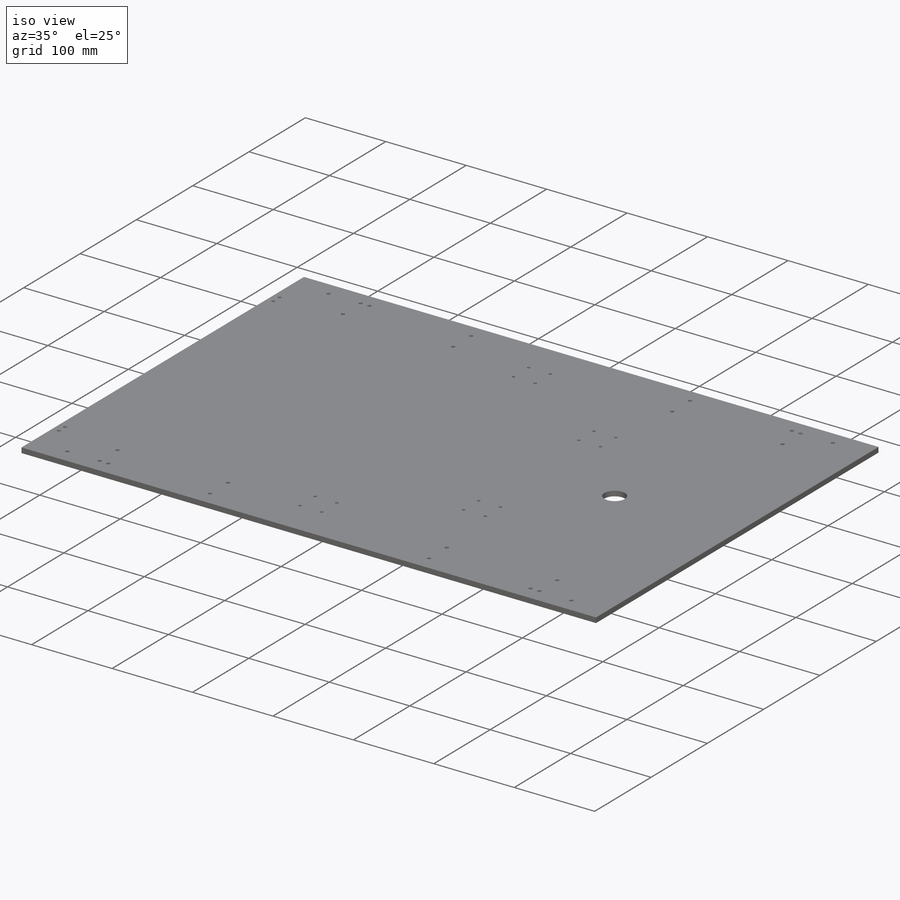
[diagram: iso view]
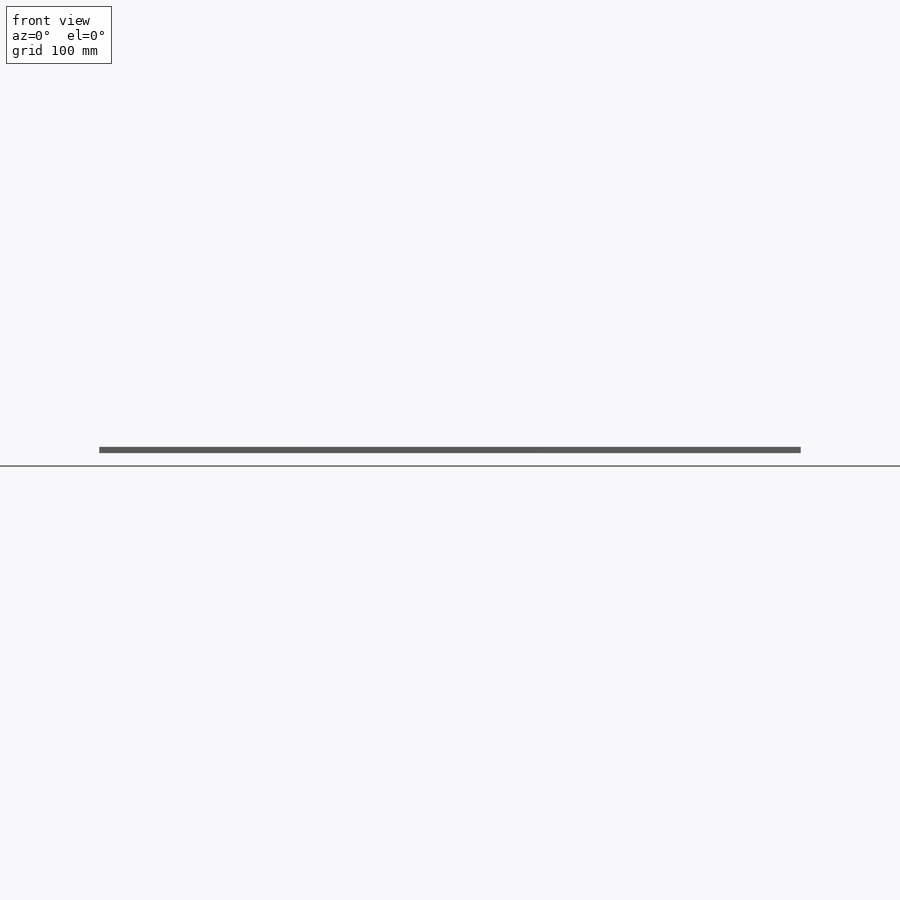
[diagram: front view]
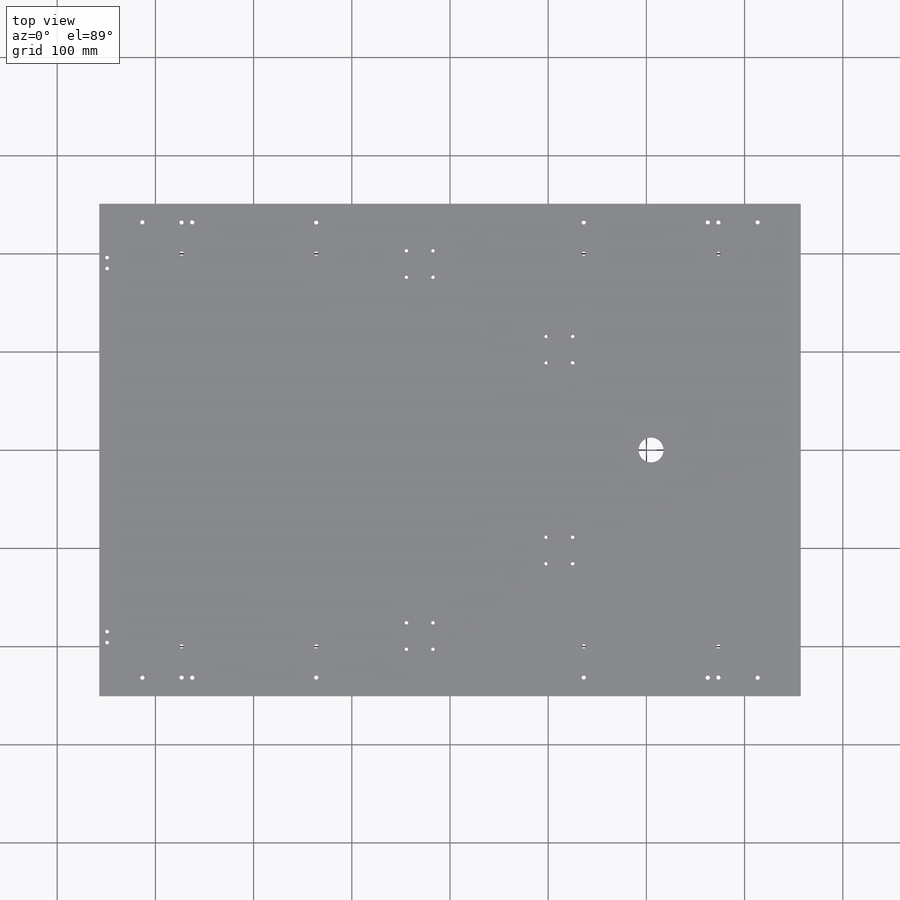
[diagram: top view]
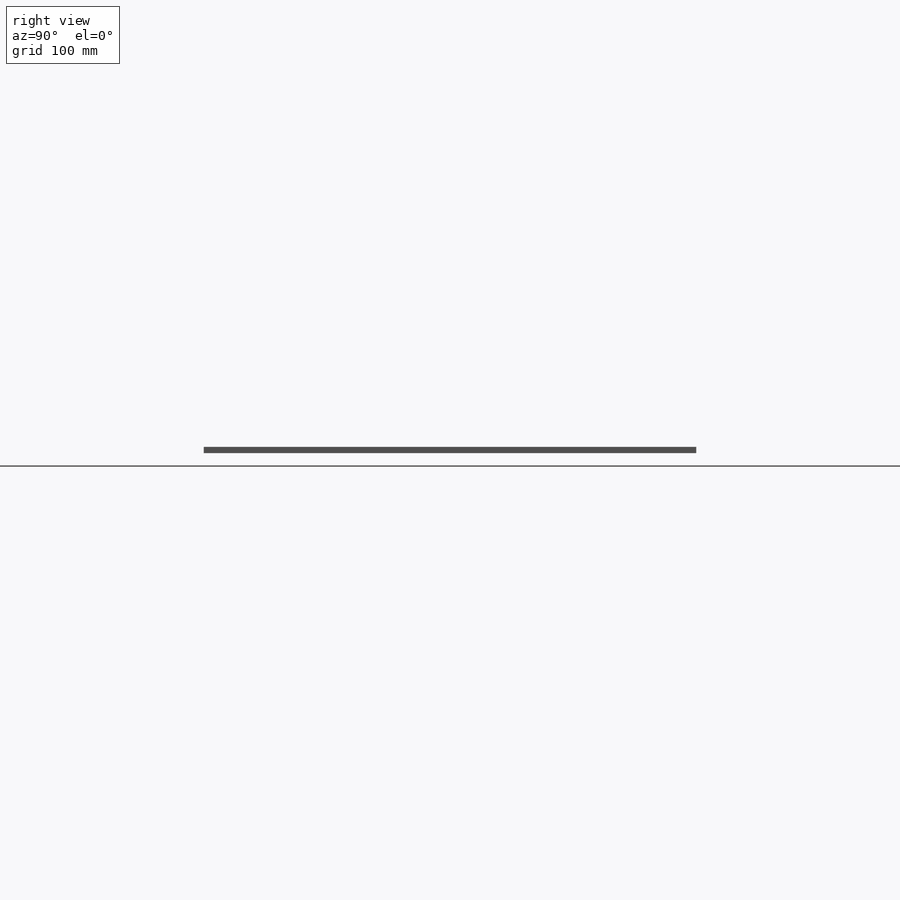
[diagram: right view]
SOLIDWORKS PART (.sldprt)
format: sldprt  version: not decoded by parser v0  size: 616,448 bytes
history: native  units: mm
features: sketch x13, cut_extrude x5, hole x3, extrude x2, material x1 (+12 scaffold rows collapsed)
feature tree (36):
  scaffold x12  (default folders/planes/origin — collapsed)
  material  "6061-T6 (SS)"
  sketch  "Sketch1"  dims[D1=501.65mm D2=714.375mm]
  extrude  "Boss-Extrude1"  Depth=6.35mm
  sketch  "Sketch2"  dims[D6=4.3053mm D1=4.7625mm D2=4.7625mm D3=63.5mm D4=114.3mm D5=228.6mm]
  cut_extrude  "Cut-Extrude1"  [1 undecoded]
  sketch  "Sketch3"  dims[c1.D8=4.3053mm c1.D5=4.3053mm c1.D7=4.3053mm c1.D6=4.3053mm c1.D9=4.3053mm c1.D10=4.3053mm c1.D14=4.3053mm c1.D1=4.7625mm c1.D2=63.5mm c1.D3=54.0mm c1.D4=54.0mm c2.D3=54.0mm c2.D4=317.5mm c3.D3=106.045mm c3.D5=114.554mm c3.D6=~3.65125mm c3.D7=25.4mm c4.D5=177.8mm c4.D1=63.5mm c4.D2=4.7625mm c5.D1=114.554mm c5.D2=317.5mm c5.D3=106.045mm c5.D4=177.8mm c5.D6=25.4mm c5.D8=106.045mm c5.D9=~3.65125mm c6.D8=~4.28625mm c6.D9=158.75mm c6.D10=114.554mm c6.D3=106.68mm c6.D5=25.4mm c7.D8=50.8mm c7.D11=50.8mm c7.D12=152.4mm c7.D13=114.554mm c7.D1=114.554mm c7.D2=106.045mm c7.D3=177.8mm c7.D4=~4.92125mm c8.D3=177.8mm c8.D5=~3.65125mm c8.D6=177.8mm c8.D7=25.4mm c8.D8=25.4mm c8.D13=101.6mm c9.D8=101.6mm c9.D9=50.8mm c9.D12=101.6mm c9.D13=101.6mm c9.D11=4.0]
  cut_extrude  "Cut-Extrude3"  [1 undecoded]
  sketch  "Sketch4"
  extrude  "Boss-Extrude2"  [1 undecoded]
  hole  "#8 Clearance Hole1"  Diameter=4.3053mm Depth=74.422mm
  sketch  "Sketch7"  dims[D1=19.05mm D2=83.82mm D3=83.82mm D4=19.05mm D5=137.16mm D6=31.75mm D7=137.16mm D8=31.75mm D9=48.26mm]
  sketch  "Sketch6"  dims[hole-wizard template sketch: 50 standard entries collapsed; hole parameters above]
  hole  "#8 Clearance Hole2"  Diameter=4.3053mm Depth=74.422mm
  sketch  "Sketch9"  dims[D1=~18.89252mm D2=43.8785mm D3=~18.89252mm D4=43.8785mm D5=43.8785mm D6=~18.89252mm D7=~18.89252mm D8=43.8785mm]
  sketch  "Sketch8"  dims[hole-wizard template sketch: 50 standard entries collapsed; hole parameters above]
  sketch  "Sketch11"  dims[D1=25.4mm]
  cut_extrude  "Cut-Extrude4"  Depth=83.82mm
  hole  "#6 Clearance Hole1"  Diameter=3.7973mm Depth=74.422mm
  sketch  "Sketch13"  dims[c1.D1=~11.15822mm c1.D2=~11.15822mm c1.D3=8.0518mm c1.D4=~11.15822mm c2.D4=90.0deg c3.D4=60.325mm c3.D5=60.325mm]
  sketch  "Sketch12"  dims[hole-wizard template sketch: 47 standard entries collapsed; hole parameters kept: c15.Hole Depth=74.422mm c15.D3=~14.816244mm c15.Drill Angle=118.0deg]
  sketch  "Sketch14"
  cut_extrude  "Cut-Extrude5"  Depth=7.62mm
  sketch  "Sketch15"
  cut_extrude  "Cut-Extrude6"  Depth=6.35mm
decode coverage: 17 of 23 modeling features carry decoded parameters
note: ~ marks probable driven/reference dimensions
note: 3 parameter values undecoded
summary: no parameter record found for 3 features
note: suppression state not decoded; provenance and decode notes live in map.json
